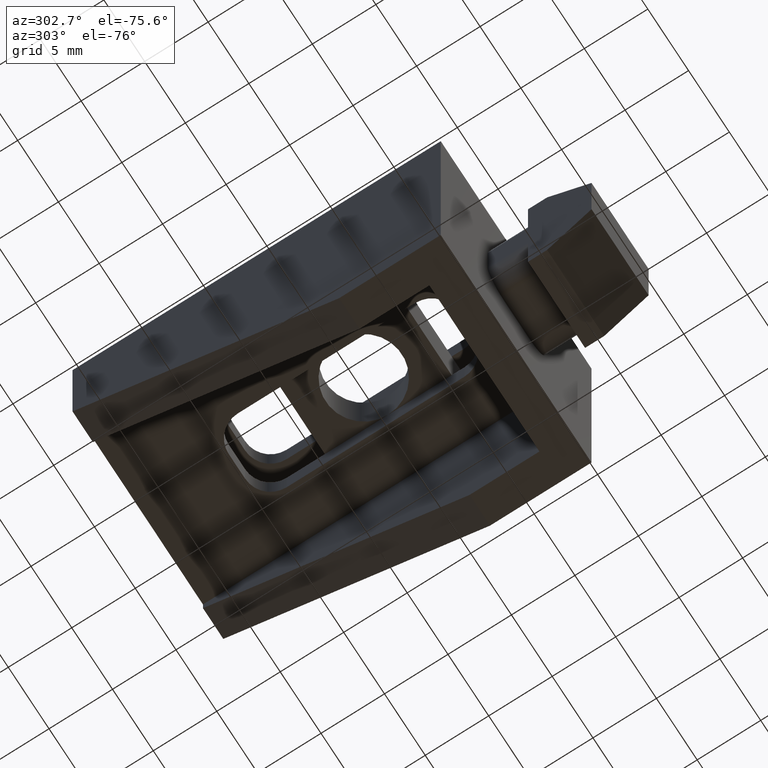
[diagram: clean part render]
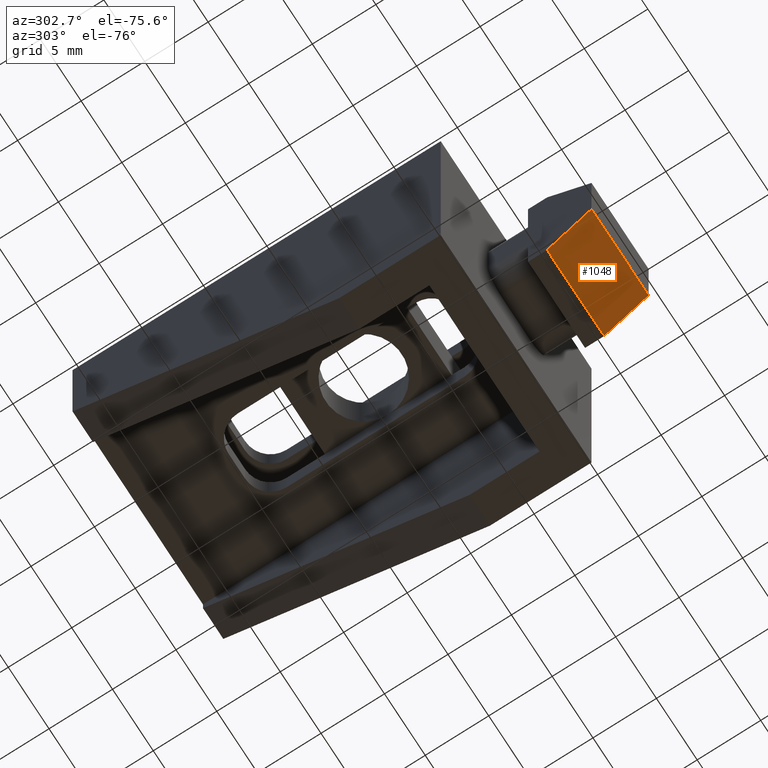
[diagram: same view with one face highlighted and labeled with its STEP entity id]
A machine part, auxiliary view. The second image highlights one B-rep face of the part: STEP entity #1048.
In plain terms, the highlighted planar face has unit normal (0, -0.7071, -0.7071).
Its self-contained STEP definition (entity closure, byte-faithful):
#102=LINE('',#1650,#222);
#105=LINE('',#1656,#225);
#106=LINE('',#1658,#226);
#107=LINE('',#1659,#227);
#222=VECTOR('',#1352,7.);
#225=VECTOR('',#1357,4.94974746830584);
#226=VECTOR('',#1358,7.);
#227=VECTOR('',#1359,4.94974746830584);
#286=PLANE('',#1124);
#354=FACE_OUTER_BOUND('',#417,.T.);
#417=EDGE_LOOP('',(#911,#912,#913,#914));
#530=VERTEX_POINT('',#1647);
#531=VERTEX_POINT('',#1649);
#533=VERTEX_POINT('',#1655);
#534=VERTEX_POINT('',#1657);
#662=EDGE_CURVE('',#530,#531,#102,.T.);
#665=EDGE_CURVE('',#530,#533,#105,.T.);
#666=EDGE_CURVE('',#533,#534,#106,.T.);
#667=EDGE_CURVE('',#531,#534,#107,.T.);
#911=ORIENTED_EDGE('',*,*,#665,.T.);
#912=ORIENTED_EDGE('',*,*,#666,.T.);
#913=ORIENTED_EDGE('',*,*,#667,.F.);
#914=ORIENTED_EDGE('',*,*,#662,.F.);
#1048=ADVANCED_FACE('',(#354),#286,.T.);
#1124=AXIS2_PLACEMENT_3D('',#1654,#1355,#1356);
#1352=DIRECTION('',(-1.,0.,0.));
#1355=DIRECTION('center_axis',(0.,-0.707106781186548,-0.707106781186547));
#1356=DIRECTION('ref_axis',(-1.,0.,0.));
#1357=DIRECTION('',(0.,-0.707106781186547,0.707106781186548));
#1358=DIRECTION('',(-1.,0.,0.));
#1359=DIRECTION('',(0.,-0.707106781186547,0.707106781186548));
#1647=CARTESIAN_POINT('',(3.5,-4.68627625152038,-11.));
#1649=CARTESIAN_POINT('',(-3.5,-4.68627625152038,-11.));
#1650=CARTESIAN_POINT('',(3.5,-4.68627625152038,-11.));
#1654=CARTESIAN_POINT('Origin',(3.5,-4.68627625152038,-11.));
#1655=CARTESIAN_POINT('',(3.5,-8.18627625152038,-7.5));
#1656=CARTESIAN_POINT('',(3.5,-4.68627625152038,-11.));
#1657=CARTESIAN_POINT('',(-3.5,-8.18627625152038,-7.5));
#1658=CARTESIAN_POINT('',(3.5,-8.18627625152038,-7.5));
#1659=CARTESIAN_POINT('',(-3.5,-4.68627625152038,-11.));